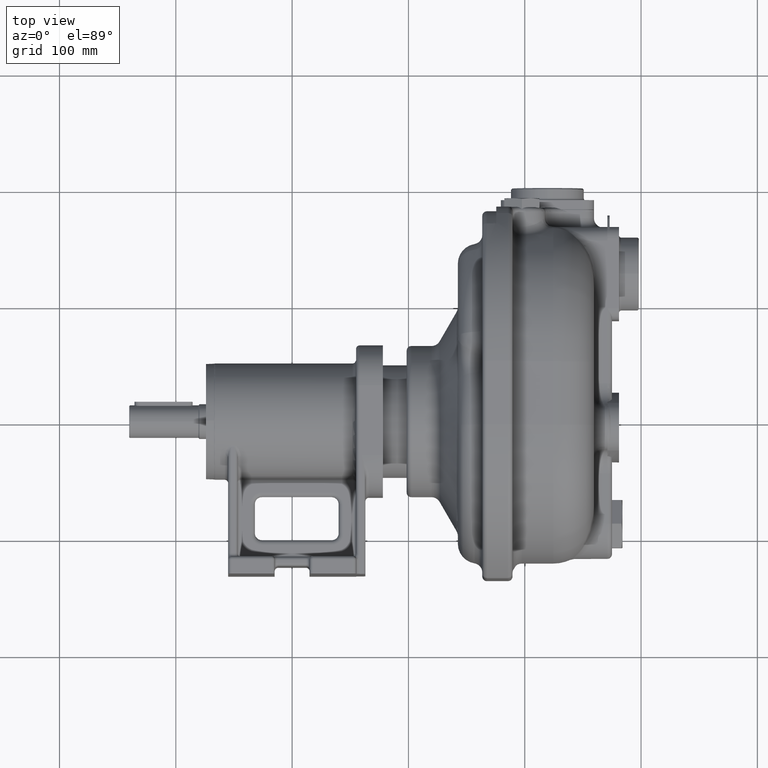
[diagram: clean part render]
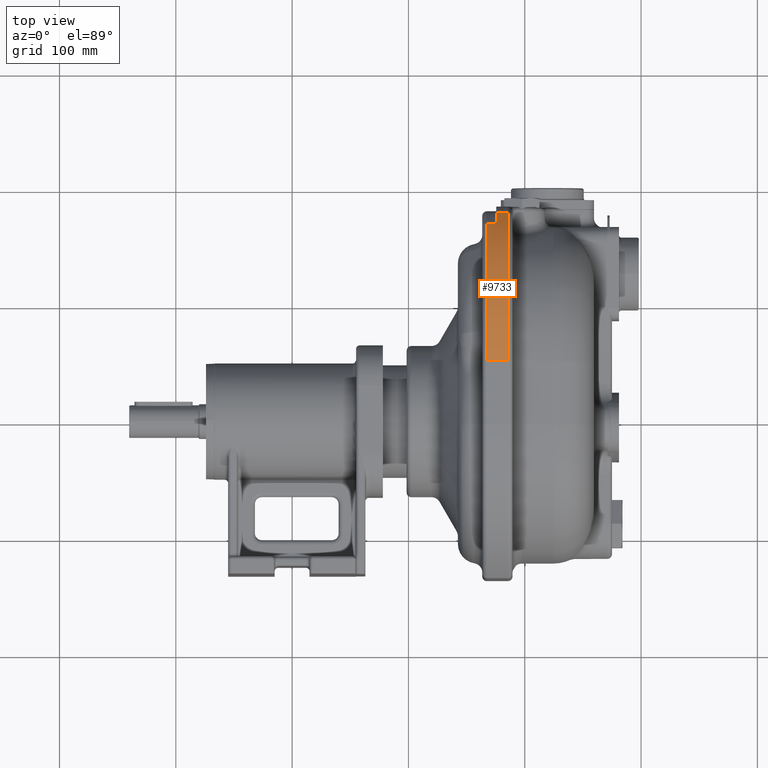
[diagram: same view with one face highlighted and labeled with its STEP entity id]
A machine part, top view. The second image highlights one B-rep face of the part: STEP entity #9733.
In plain terms, the highlighted cylindrical surface (partial cylindrical patch) has radius 150 mm, axis along (-1, 0, 0).
Its self-contained STEP definition (entity closure, byte-faithful):
#34=CARTESIAN_POINT('',(-2.45E1,5.E1,-9.E0));
#35=DIRECTION('',(-1.E0,0.E0,0.E0));
#36=DIRECTION('',(0.E0,7.938144329899E-1,6.081600496389E-1));
#37=AXIS2_PLACEMENT_3D('',#34,#35,#36);
#130=CARTESIAN_POINT('',(-2.65E1,5.E1,-9.E0));
#131=DIRECTION('',(-1.E0,0.E0,0.E0));
#132=DIRECTION('',(0.E0,7.938144329897E-1,6.081600496393E-1));
#133=AXIS2_PLACEMENT_3D('',#130,#131,#132);
#135=DIRECTION('',(-1.E0,0.E0,0.E0));
#136=VECTOR('',#135,6.E0);
#137=CARTESIAN_POINT('',(-2.65E1,1.690721649485E2,8.222400744589E1));
#138=LINE('',#137,#136);
#144=CARTESIAN_POINT('',(-3.25E1,5.E1,-9.E0));
#145=DIRECTION('',(-1.E0,0.E0,0.E0));
#146=DIRECTION('',(0.E0,0.E0,1.E0));
#147=AXIS2_PLACEMENT_3D('',#144,#145,#146);
#149=DIRECTION('',(1.E0,8.545460635408E-12,-1.128341864387E-11));
#150=VECTOR('',#149,1.5E0);
#151=CARTESIAN_POINT('',(-2.6E1,1.690721649485E2,8.222400744589E1));
#152=LINE('',#151,#150);
#153=DIRECTION('',(1.E0,0.E0,0.E0));
#154=VECTOR('',#153,1.E1);
#155=CARTESIAN_POINT('',(-2.45E1,1.781818181818E2,6.890649194774E1));
#156=LINE('',#155,#154);
#157=CARTESIAN_POINT('',(-1.45E1,5.E1,-9.E0));
#158=DIRECTION('',(-1.E0,0.E0,0.E0));
#159=DIRECTION('',(0.E0,0.E0,1.E0));
#160=AXIS2_PLACEMENT_3D('',#157,#158,#159);
#170=DIRECTION('',(1.E0,0.E0,0.E0));
#171=VECTOR('',#170,1.8E1);
#172=CARTESIAN_POINT('',(-3.25E1,5.E1,1.41E2));
#173=LINE('',#172,#171);
#8185=DIRECTION('',(-1.E0,0.E0,0.E0));
#8186=VECTOR('',#8185,5.E-1);
#8187=CARTESIAN_POINT('',(-2.6E1,1.7E2,8.1E1));
#8188=LINE('',#8187,#8186);
#8189=CARTESIAN_POINT('',(-2.6E1,5.E1,-9.E0));
#8190=DIRECTION('',(-1.E0,0.E0,0.E0));
#8191=DIRECTION('',(0.E0,7.938144329897E-1,6.081600496393E-1));
#8192=AXIS2_PLACEMENT_3D('',#8189,#8190,#8191);
#8235=CARTESIAN_POINT('',(-2.6E1,1.7E2,8.1E1));
#8237=VERTEX_POINT('',#8235);
#8243=CARTESIAN_POINT('',(-2.65E1,1.7E2,8.1E1));
#8245=VERTEX_POINT('',#8243);
#8255=CARTESIAN_POINT('',(-2.6E1,1.690721649485E2,8.222400744589E1));
#8257=VERTEX_POINT('',#8255);
#8674=CARTESIAN_POINT('',(-2.45E1,1.781818181818E2,6.890649194774E1));
#8676=VERTEX_POINT('',#8674);
#8710=CARTESIAN_POINT('',(-1.45E1,5.E1,1.41E2));
#8711=VERTEX_POINT('',#8710);
#8714=CARTESIAN_POINT('',(-1.45E1,1.781818181818E2,6.890649194774E1));
#8715=VERTEX_POINT('',#8714);
#8734=CARTESIAN_POINT('',(-2.45E1,1.690721649485E2,8.222400744584E1));
#8735=VERTEX_POINT('',#8734);
#9067=CARTESIAN_POINT('',(-3.25E1,1.690721649485E2,8.222400744589E1));
#9068=VERTEX_POINT('',#9067);
#9071=CARTESIAN_POINT('',(-3.25E1,5.E1,1.41E2));
#9072=VERTEX_POINT('',#9071);
#9089=CARTESIAN_POINT('',(-2.65E1,1.690721649485E2,8.222400744589E1));
#9091=VERTEX_POINT('',#9089);
#9709=CARTESIAN_POINT('',(-2.35E1,5.E1,-9.E0));
#9710=DIRECTION('',(-1.E0,0.E0,0.E0));
#9711=DIRECTION('',(0.E0,0.E0,1.E0));
#9712=AXIS2_PLACEMENT_3D('',#9709,#9710,#9711);
#9713=CYLINDRICAL_SURFACE('',#9712,1.5E2);
#9715=ORIENTED_EDGE('',*,*,#9714,.F.);
#9717=ORIENTED_EDGE('',*,*,#9716,.T.);
#9718=ORIENTED_EDGE('',*,*,#9701,.F.);
#9719=ORIENTED_EDGE('',*,*,#9690,.T.);
#9721=ORIENTED_EDGE('',*,*,#9720,.F.);
#9723=ORIENTED_EDGE('',*,*,#9722,.F.);
#9725=ORIENTED_EDGE('',*,*,#9724,.T.);
#9726=ORIENTED_EDGE('',*,*,#9586,.T.);
#9728=ORIENTED_EDGE('',*,*,#9727,.T.);
#9730=ORIENTED_EDGE('',*,*,#9729,.F.);
#9731=EDGE_LOOP('',(#9715,#9717,#9718,#9719,#9721,#9723,#9725,#9726,#9728,
#9730));
#9732=FACE_OUTER_BOUND('',#9731,.F.);
#9733=ADVANCED_FACE('',(#9732),#9713,.T.);
#38=CIRCLE('',#37,1.5E2);
#134=CIRCLE('',#133,1.5E2);
#148=CIRCLE('',#147,1.5E2);
#161=CIRCLE('',#160,1.5E2);
#8193=CIRCLE('',#8192,1.5E2);
#9586=EDGE_CURVE('',#8735,#8676,#38,.T.);
#9690=EDGE_CURVE('',#9091,#8245,#134,.T.);
#9701=EDGE_CURVE('',#9091,#9068,#138,.T.);
#9714=EDGE_CURVE('',#9072,#8711,#173,.T.);
#9716=EDGE_CURVE('',#9072,#9068,#148,.T.);
#9720=EDGE_CURVE('',#8237,#8245,#8188,.T.);
#9722=EDGE_CURVE('',#8257,#8237,#8193,.T.);
#9724=EDGE_CURVE('',#8257,#8735,#152,.T.);
#9727=EDGE_CURVE('',#8676,#8715,#156,.T.);
#9729=EDGE_CURVE('',#8711,#8715,#161,.T.);